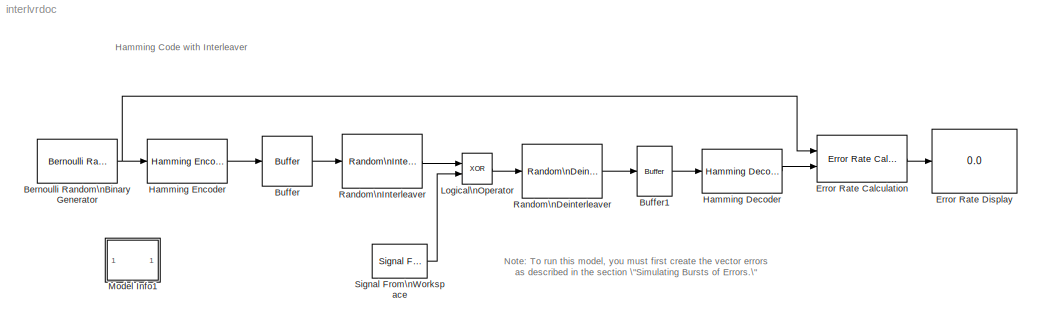
MODEL interlvrdoc
KIND model
CONFIG AbsTol = auto
CONFIG FixedStep = auto
CONFIG MaxStep = auto
CONFIG MinStep = auto
CONFIG RelTol = 1e-3
CONFIG Solver = ode45
CONFIG SolverMode = SingleTasking
CONFIG StartTime = 0.0
CONFIG StopTime = length(errors)
BLOCK [Reference] Bernoulli Random\nBinary Generator  REF=commsource2/Bernoulli Random\nBinary Generator
  P = 0.5
  Ports = [0, 1]
  SourceBlock = commsource2/Bernoulli Random\nBinary Generator
  SourceType = Bernoulli Random Binary Generator
  Ts = 1
  frameBased = on
  orient = off
  sampPerFrame = 4
  seed = 435345
BLOCK [Reference] Buffer  REF=dspbuff3/Buffer
  N = 84
  Ports = [1, 1]
  SourceBlock = dspbuff3/Buffer
  SourceType = Buffer
  V = 0
  ic = 0
BLOCK [Reference] Buffer1  REF=dspbuff3/Buffer
  N = 7
  Ports = [1, 1]
  SourceBlock = dspbuff3/Buffer
  SourceType = Buffer
  V = 0
  ic = 0
BLOCK [Reference] Error Rate Calculation  REF=commsink2/Error Rate Calculation
  N = (4/7)*84
  PMode = Port
  Ports = [2, 1]
  RsMode2 = off
  SourceBlock = commsink2/Error Rate Calculation
  SourceType = Error Rate Calculation
  WsName = ErrorVec
  cp_mode = Entire frame
  maxBits = 1000
  numErr = 100
  st_delay = 100
  stop = off
  subframe = []
BLOCK [Display] Error Rate Display
  Decimation = 1
  Floating = off
  Format = short
  Ports = [1]
  SampleTime = -1
BLOCK [Reference] Hamming Decoder  REF=commblkcod2/Hamming Decoder
  Ports = [1, 1]
  SourceBlock = commblkcod2/Hamming Decoder
  SourceType = Hamming Decoder
  k = gfprimfd(3,'min')
  n = 7
BLOCK [Reference] Hamming Encoder  REF=commblkcod2/Hamming Encoder
  Ports = [1, 1]
  SourceBlock = commblkcod2/Hamming Encoder
  SourceType = Hamming Encoder
  k = gfprimfd(3,'min')
  n = 7
BLOCK [Logic] Logical\nOperator
  Inputs = 2
  Operator = XOR
  Ports = [2, 1]
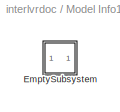
BLOCK [SubSystem] Model Info1
  CopyFcn = slcm CopyBlock;
  DeleteFcn = slcm Cancel;
  InitFcn = slcm('UpdateAllCMBlocksInThisModelInit')
  LoadFcn = slcm LoadBlock;
  MaskCallbackString = ||||||||||||||||||||||||||||||
  MaskDescription = This block allows revision control information to be displayed within the model.
  MaskDisplay = text(str2num(LeftAlignmentValue), 0.5, MaskDisplayString, 'HorizontalAlignment', HorizontalTextAlignment)\n
  MaskEnableString = on,on,on,on,on,on,on,on,on,on,on,on,on,on,on,on,on,on,on,on,on,on,on,on,on,on,on,on,on,on,on
  MaskIconFrame = on
  MaskIconOpaque = on
  MaskIconRotate = none
  MaskIconUnits = normalized
  MaskPromptString = InitialSaveTempField|InitialBlockCM|BlockCM|Frame|SaveTempField|DisplayStringWithTags|MaskDisplayString|HorizontalTextAlignment|LeftAlignmentValue|SourceBlockDiagram|TagMaxNumber|CMTag1|CMTag2|CMTag3|CMTag4|CMTag5|CMTag6|CMTag7|CMTag8|CMTag9|CMTag10|CMTag11|CMTag12|CMTag13|CMTag14|CMTag15|CMTag16|CMTag17|CMTag18|CMTag19|CMTag20
  MaskSelfModifiable = on
  MaskStyleString = edit,edit,edit,edit,edit,edit,edit,edit,edit,edit,edit,edit,edit,edit,edit,edit,edit,edit,edit,edit,edit,edit,edit,edit,edit,edit,edit,edit,edit,edit,edit
  MaskToolTipString = on,on,on,on,on,on,on,on,on,on,on,on,on,on,on,on,on,on,on,on,on,on,on,on,on,on,on,on,on,on,on
  MaskTunableValueString = on,on,on,on,on,on,on,on,on,on,on,on,on,on,on,on,on,on,on,on,on,on,on,on,on,on,on,on,on,on,on
  MaskType = CMBlock
  MaskValueString = |None|None|on||Info|Info|Center|0.5|interlvrdoc|20||||||||||||||||||||
  MaskVariableAliases = ,,,,,,,,,,,,,,,,,,,,,,,,,,,,,,
  MaskVariables = InitialSaveTempField=&1;InitialBlockCM=&2;BlockCM=&3;Frame=&4;SaveTempField=&5;DisplayStringWithTags=&6;MaskDisplayString=&7;HorizontalTextAlignment=&8;LeftAlignmentValue=&9;SourceBlockDiagram=&10;TagMaxNumber=@11;CMTag1=&12;CMTag2=&13;CMTag3=&14;CMTag4=&15;CMTag5=&16;CMTag6=&17;CMTag7=&18;CMTag8=&19;CMTag9=&20;CMTag10=&21;CMTag11=&22;CMTag12=&23;CMTag13=&24;CMTag14=&25;CMTag15=&26;CMTag16=&27;CMT...<+45ch>
  MaskVisibilityString = off,off,off,off,off,off,off,off,off,off,off,off,off,off,off,off,off,off,off,off,off,off,off,off,off,off,off,off,off,off,off
  NameChangeFcn = slcm Rename;
  OpenFcn = commdemohelp;
  Ports = []
  PostSaveFcn = slcm('UpdateAllCMBlocksInThisModel')
  RTWFcnNameOpts = Auto
  RTWFileNameOpts = Auto
  RTWSystemCode = Auto
  ShowPortLabels = on
  TreatAsAtomicUnit = off
BLOCK [SubSystem] Model Info1/EmptySubsystem
  Ports = []
  RTWFcnNameOpts = Auto
  RTWFileNameOpts = Auto
  RTWSystemCode = Auto
  ShowPortLabels = on
  TreatAsAtomicUnit = off
BLOCK [Reference] Random\nDeinterleaver  REF=commblkintrlv2/Random\nDeinterleaver
  N = 84
  Ports = [1, 1]
  SourceBlock = commblkintrlv2/Random\nDeinterleaver
  SourceType = Random Deinterleaver
  seed = 113
BLOCK [Reference] Random\nInterleaver  REF=commblkintrlv2/Random\nInterleaver
  N = 84
  Ports = [1, 1]
  SourceBlock = commblkintrlv2/Random\nInterleaver
  SourceType = Random Interleaver
  seed = 113
BLOCK [Reference] Signal From\nWorkspace  REF=dspsrcs4/Signal From\nWorkspace
  OutputAfterFinalValue = Setting to zero
  Ports = [0, 1]
  SourceBlock = dspsrcs4/Signal From\nWorkspace
  SourceType = Signal From Workspace
  Ts = 4/7
  X = errors
  nsamps = 84
ANNOTATION (root): Hamming Code with Interleaver
ANNOTATION (root): Note: To run this model, you must first create the vector errors \nas described in the section \"Simulating Bursts of Errors.\"
NET Bernoulli Random\nBinary Generator:1 -> Error Rate Calculation:1, Hamming Encoder:1
LINE Buffer1:1 -> Hamming Decoder:1
LINE Buffer:1 -> Random\nInterleaver:1
LINE Error Rate Calculation:1 -> Error Rate Display:1
LINE Hamming Decoder:1 -> Error Rate Calculation:2
LINE Hamming Encoder:1 -> Buffer:1
LINE Logical\nOperator:1 -> Random\nDeinterleaver:1
LINE Random\nDeinterleaver:1 -> Buffer1:1
LINE Random\nInterleaver:1 -> Logical\nOperator:1
LINE Signal From\nWorkspace:1 -> Logical\nOperator:2
note: NET lines group one-source signal fan-out (src -> all destinations, sorted); 1:1 wires keep LINE
